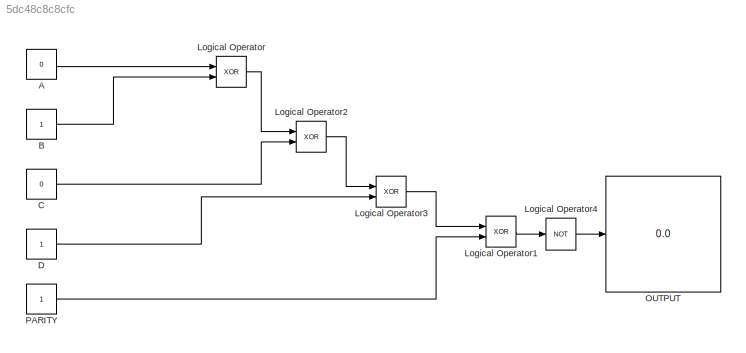
MODEL slx_5dc48c8c8cfc
KIND model
CONFIG AbsTol = auto
CONFIG EnableMultiTasking = off
CONFIG FixedStep = auto
CONFIG MaxStep = auto
CONFIG MinStep = auto
CONFIG RelTol = 1e-3
CONFIG SampleTimeConstraint = Unconstrained
CONFIG SolverName = VariableStepAuto
CONFIG StartTime = 0.0
CONFIG StopTime = 1
BLOCK [Constant] A
  Value = 0
BLOCK [Constant] B
BLOCK [Constant] C
  Value = 0
BLOCK [Constant] D
BLOCK [Logic] Logical Operator
  AllPortsSameDT = off
  Operator = XOR
  OutDataTypeStr = boolean
  Ports = [2, 1]
BLOCK [Logic] Logical Operator1
  AllPortsSameDT = off
  Operator = XOR
  OutDataTypeStr = boolean
  Ports = [2, 1]
BLOCK [Logic] Logical Operator2
  AllPortsSameDT = off
  Operator = XOR
  OutDataTypeStr = boolean
  Ports = [2, 1]
BLOCK [Logic] Logical Operator3
  AllPortsSameDT = off
  Operator = XOR
  OutDataTypeStr = boolean
  Ports = [2, 1]
BLOCK [Logic] Logical Operator4
  AllPortsSameDT = off
  Operator = NOT
  OutDataTypeStr = boolean
  Ports = [1, 1]
BLOCK [Display] OUTPUT
  Decimation = 1
  Ports = [1]
BLOCK [Constant] PARITY
LINE A:1 -> Logical Operator:1
LINE B:1 -> Logical Operator:2
LINE C:1 -> Logical Operator2:2
LINE D:1 -> Logical Operator3:2
LINE Logical Operator1:1 -> Logical Operator4:1
LINE Logical Operator2:1 -> Logical Operator3:1
LINE Logical Operator3:1 -> Logical Operator1:1
LINE Logical Operator4:1 -> OUTPUT:1
LINE Logical Operator:1 -> Logical Operator2:1
LINE PARITY:1 -> Logical Operator1:2
